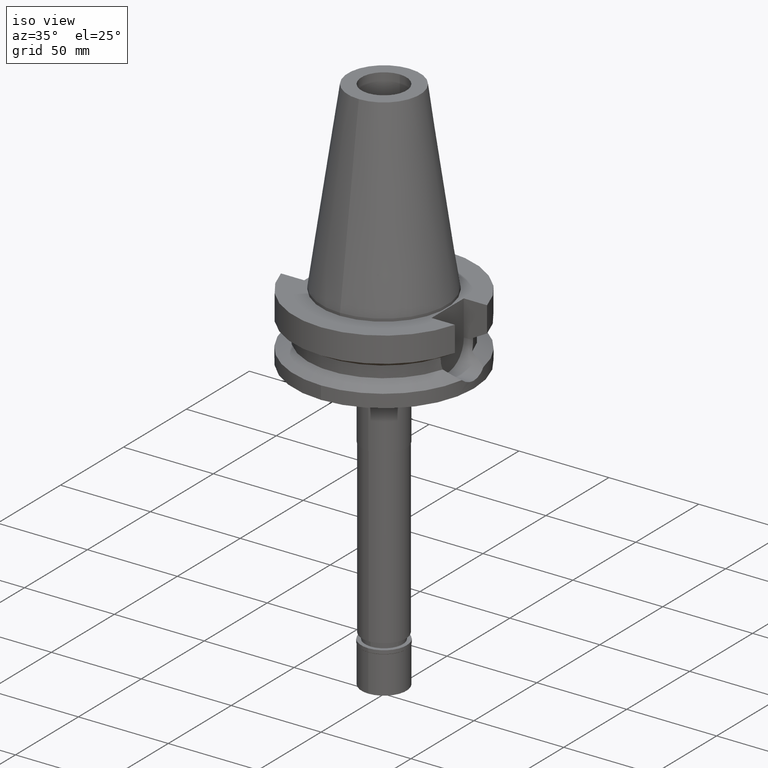
[diagram: clean part render]
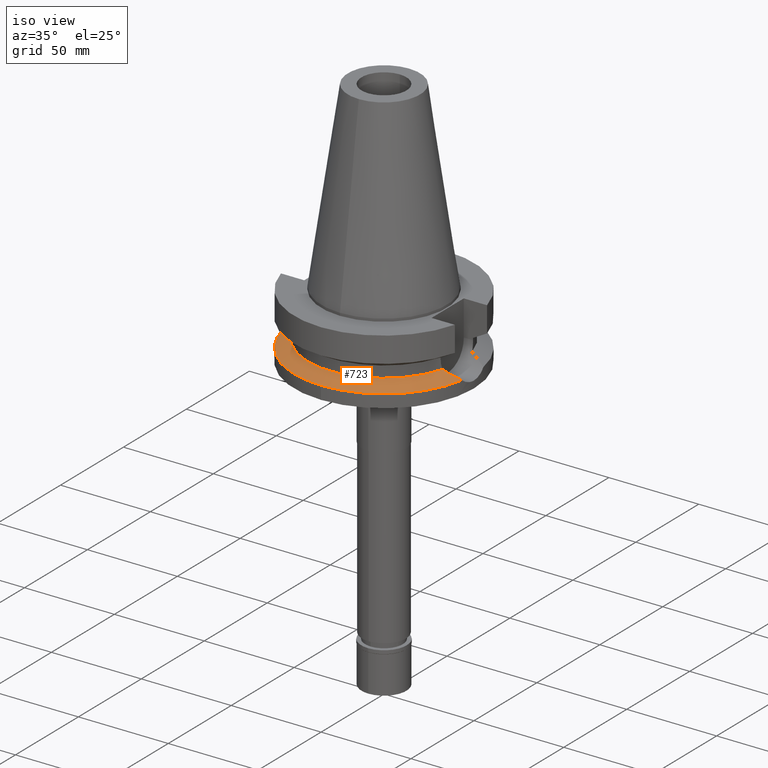
[diagram: same view with one face highlighted and labeled with its STEP entity id]
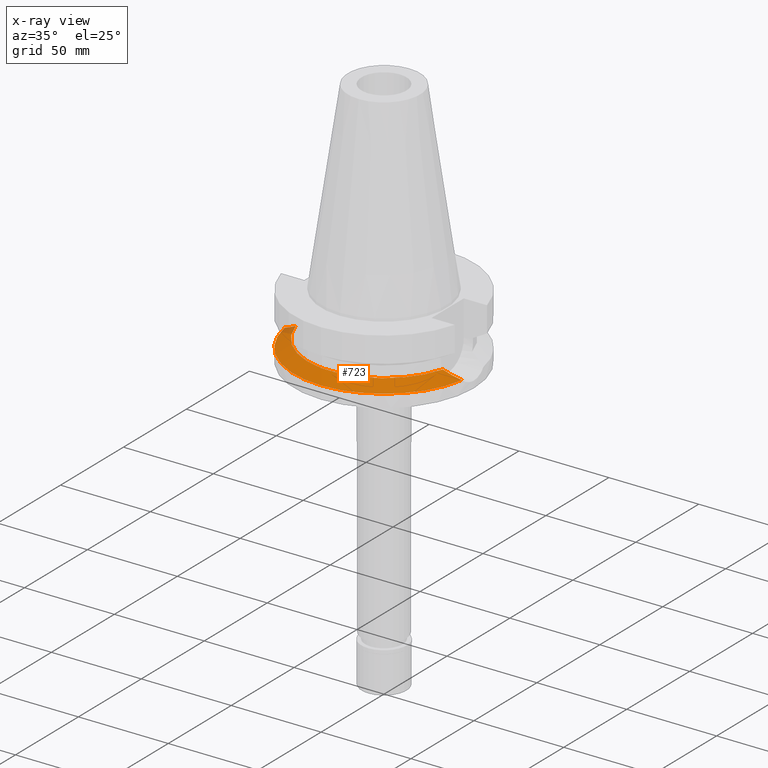
[diagram: x-ray of the same camera — body ghosted, the highlighted face saturated]
A machine part, iso view. The second image highlights one B-rep face of the part: STEP entity #723.
The next image is the same camera in x-ray: the body ghosted, the highlighted face saturated — about 2% of this face is hidden behind the body in this view.
In plain terms, the highlighted conical surface has half-angle 60 deg.
Its self-contained STEP definition (entity closure, byte-faithful):
#8 = VERTEX_POINT ( 'NONE', #1497 ) ;
#43 = ORIENTED_EDGE ( 'NONE', *, *, #246, .F. ) ;
#67 = AXIS2_PLACEMENT_3D ( 'NONE', #2087, #365, #2830 ) ;
#151 = CARTESIAN_POINT ( 'NONE',  ( -45.43153673700287953, -10.34609396948753179, -28.77110352131270687 ) ) ;
#162 = DIRECTION ( 'NONE',  ( 0.0000000000000000000, 0.0000000000000000000, 1.000000000000000000 ) ) ;
#200 = CARTESIAN_POINT ( 'NONE',  ( -45.98889564606068348, -10.12985182365856751, -29.05774813466844364 ) ) ;
#242 = EDGE_CURVE ( 'NONE', #2623, #2076, #2894, .T. ) ;
#246 = EDGE_CURVE ( 'NONE', #329, #2623, #3107, .T. ) ;
#329 = VERTEX_POINT ( 'NONE', #436 ) ;
#365 = DIRECTION ( 'NONE',  ( 0.0000000000000000000, 0.0000000000000000000, -1.000000000000000000 ) ) ;
#387 = EDGE_CURVE ( 'NONE', #2076, #8, #2824, .T. ) ;
#436 = CARTESIAN_POINT ( 'NONE',  ( 49.26250064874000145, -8.556052234130000045, -30.73730776426999967 ) ) ;
#441 = CARTESIAN_POINT ( 'NONE',  ( 45.34961199713250579, -10.37693058794193668, -28.72912203531489439 ) ) ;
#455 = CARTESIAN_POINT ( 'NONE',  ( 45.47522466885785519, -10.32938143917868601, -28.79372822533596121 ) ) ;
#600 = DIRECTION ( 'NONE',  ( 0.0000000000000000000, 0.0000000000000000000, -1.000000000000000000 ) ) ;
#654 = ORIENTED_EDGE ( 'NONE', *, *, #242, .F. ) ;
#656 = CARTESIAN_POINT ( 'NONE',  ( -47.11329693392804785, -9.652475852286576341, -29.63548234299633677 ) ) ;
#693 = CARTESIAN_POINT ( 'NONE',  ( -42.54334651794913214, -11.33225947987075877, -27.28398053277577873 ) ) ;
#697 = CARTESIAN_POINT ( 'NONE',  ( 44.08864117212704059, -10.82336392978616857, -28.08017507441951111 ) ) ;
#723 = ADVANCED_FACE ( 'NONE', ( #830 ), #1493, .T. ) ;
#733 = ORIENTED_EDGE ( 'NONE', *, *, #387, .F. ) ;
#746 = CARTESIAN_POINT ( 'NONE',  ( 48.17329793562976903, -9.181108582848130695, -30.17948539114933837 ) ) ;
#824 = DIRECTION ( 'NONE',  ( 0.0000000000000000000, 0.0000000000000000000, -1.000000000000000000 ) ) ;
#830 = FACE_OUTER_BOUND ( 'NONE', #3016, .T. ) ;
#863 = EDGE_CURVE ( 'NONE', #2731, #329, #2817, .T. ) ;
#903 = DIRECTION ( 'NONE',  ( 0.0000000000000000000, -1.000000000000000000, 0.0000000000000000000 ) ) ;
#949 = CARTESIAN_POINT ( 'NONE',  ( 0.0000000000000000000, -50.00000000000000000, -30.73730776426999967 ) ) ;
#951 = CARTESIAN_POINT ( 'NONE',  ( -45.37383198676859308, -10.36787785463953959, -28.74142035702148945 ) ) ;
#993 = CIRCLE ( 'NONE', #2803, 42.50000000000000000 ) ;
#1085 = CARTESIAN_POINT ( 'NONE',  ( 0.0000000000000000000, 0.0000000000000000000, -30.73730776426999967 ) ) ;
#1170 = CARTESIAN_POINT ( 'NONE',  ( -45.39692684362336195, -10.35916877310016027, -28.75330037392657445 ) ) ;
#1382 = CARTESIAN_POINT ( 'NONE',  ( -46.77625750527455750, -9.802034683528001224, -29.46240053052295593 ) ) ;
#1427 = CARTESIAN_POINT ( 'NONE',  ( -49.26250064874000145, -8.556052234130000045, -30.73730776426999967 ) ) ;
#1493 = CONICAL_SURFACE ( 'NONE', #2637, 46.25000000000000000, 1.047197551196400456 ) ;
#1497 = CARTESIAN_POINT ( 'NONE',  ( -40.85052569294000335, -11.72538061688000077, -26.40718074535000426 ) ) ;
#1588 = DIRECTION ( 'NONE',  ( 0.0000000000000000000, -1.000000000000000000, 0.0000000000000000000 ) ) ;
#1633 = CARTESIAN_POINT ( 'NONE',  ( -48.09124591161025819, -9.195375972483855520, -30.13734462529286873 ) ) ;
#1646 = CARTESIAN_POINT ( 'NONE',  ( -40.85052569294000335, -11.72538061688000077, -26.40718074535000426 ) ) ;
#1700 = CARTESIAN_POINT ( 'NONE',  ( -48.69898615236066064, -8.879434015426456384, -30.44871043534659449 ) ) ;
#1706 = CARTESIAN_POINT ( 'NONE',  ( 41.72695976776593341, -11.52184770015332482, -26.86113145244769740 ) ) ;
#1723 = CARTESIAN_POINT ( 'NONE',  ( 46.91827285611654474, -9.778896238519932282, -29.53590992279274374 ) ) ;
#1735 = CARTESIAN_POINT ( 'NONE',  ( 49.26250064874000145, -8.556052234130000045, -30.73730776426999967 ) ) ;
#1818 = CARTESIAN_POINT ( 'NONE',  ( 0.0000000000000000000, 0.0000000000000000000, -28.57224425480999841 ) ) ;
#1948 = CARTESIAN_POINT ( 'NONE',  ( 0.0000000000000000000, 0.0000000000000000000, -26.40718074535000426 ) ) ;
#1982 = CARTESIAN_POINT ( 'NONE',  ( 42.55241844828393027, -11.29883974246741829, -27.28792173438198532 ) ) ;
#2070 = DIRECTION ( 'NONE',  ( 0.9852500129747439050, -0.1711210446826074982, 0.0000000000000000000 ) ) ;
#2076 = VERTEX_POINT ( 'NONE', #2137 ) ;
#2087 = CARTESIAN_POINT ( 'NONE',  ( 0.0000000000000000000, 0.0000000000000000000, -30.73730776426999967 ) ) ;
#2110 = AXIS2_PLACEMENT_3D ( 'NONE', #1085, #824, #2070 ) ;
#2137 = CARTESIAN_POINT ( 'NONE',  ( -49.26250064874000145, -8.556052234130000045, -30.73730776426999967 ) ) ;
#2147 = CARTESIAN_POINT ( 'NONE',  ( -46.25411370815518097, -10.02140734988904036, -29.19408113813012307 ) ) ;
#2188 = CARTESIAN_POINT ( 'NONE',  ( 43.71414337759900093, -10.94469431065044773, -27.88721063439874825 ) ) ;
#2403 = CARTESIAN_POINT ( 'NONE',  ( -45.51206641157007482, -10.31550816418443084, -28.81252601822142623 ) ) ;
#2436 = CARTESIAN_POINT ( 'NONE',  ( 45.41310994470852336, -10.35294500846405263, -28.76178110869155446 ) ) ;
#2548 = EDGE_CURVE ( 'NONE', #8, #2731, #993, .T. ) ;
#2619 = CARTESIAN_POINT ( 'NONE',  ( -44.04340619963954850, -10.86779429620430903, -28.05703177086082789 ) ) ;
#2623 = VERTEX_POINT ( 'NONE', #949 ) ;
#2637 = AXIS2_PLACEMENT_3D ( 'NONE', #1818, #600, #1588 ) ;
#2673 = CARTESIAN_POINT ( 'NONE',  ( 44.63127209105361004, -10.63754947704348552, -28.35954571752805364 ) ) ;
#2681 = CARTESIAN_POINT ( 'NONE',  ( -45.36091800784226535, -10.37273809374846145, -28.73477730515979545 ) ) ;
#2731 = VERTEX_POINT ( 'NONE', #2762 ) ;
#2762 = CARTESIAN_POINT ( 'NONE',  ( 40.85052569294000335, -11.72538061688000077, -26.40718074535000426 ) ) ;
#2767 = ORIENTED_EDGE ( 'NONE', *, *, #863, .F. ) ;
#2803 = AXIS2_PLACEMENT_3D ( 'NONE', #1948, #162, #903 ) ;
#2817 = B_SPLINE_CURVE_WITH_KNOTS ( 'NONE', 3,
 ( #2928, #1706, #1982, #2188, #697, #2673, #2976, #2956, #441, #2436, #3185, #455, #1723, #746, #1735 ),
 .UNSPECIFIED., .F., .F.,
 ( 4, 2, 2, 1, 1, 1, 2, 2, 4 ),
 ( 0.0000000000000000000, 0.2499999999999806821, 0.3749999999999710232, 0.4374999999999673039, 0.4687499999999654166, 0.4843749999999652500, 0.4921874999999653610, 0.4999999999999654721, 1.000000000000000000 ),
 .UNSPECIFIED. ) ;
#2824 = B_SPLINE_CURVE_WITH_KNOTS ( 'NONE', 3,
 ( #1427, #1700, #1633, #656, #1382, #2147, #200, #2884, #2403, #151, #1170, #951, #2681, #2619, #693, #1646 ),
 .UNSPECIFIED., .F., .F.,
 ( 4, 2, 2, 1, 1, 1, 1, 2, 2, 4 ),
 ( 0.0000000000000000000, 0.2500000000000018319, 0.3750000000000027756, 0.4375000000000038858, 0.4687500000000044964, 0.4843750000000040523, 0.4921875000000038303, 0.4960937500000034972, 0.5000000000000032196, 1.000000000000000000 ),
 .UNSPECIFIED. ) ;
#2830 = DIRECTION ( 'NONE',  ( 0.0000000000000000000, -1.000000000000000000, 0.0000000000000000000 ) ) ;
#2884 = CARTESIAN_POINT ( 'NONE',  ( -45.67221878743126240, -10.25402753974432279, -28.89489802541604391 ) ) ;
#2894 = CIRCLE ( 'NONE', #67, 50.00000000000000000 ) ;
#2928 = CARTESIAN_POINT ( 'NONE',  ( 40.85052569294000335, -11.72538061688000077, -26.40718074535000426 ) ) ;
#2940 = ORIENTED_EDGE ( 'NONE', *, *, #2548, .F. ) ;
#2956 = CARTESIAN_POINT ( 'NONE',  ( 45.20040472562663325, -10.43273760203010347, -28.65237623215547913 ) ) ;
#2976 = CARTESIAN_POINT ( 'NONE',  ( 44.89780860730053291, -10.54368650612202352, -28.49671337046649455 ) ) ;
#3016 = EDGE_LOOP ( 'NONE', ( #654, #43, #2767, #2940, #733 ) ) ;
#3107 = CIRCLE ( 'NONE', #2110, 50.00000000000000000 ) ;
#3185 = CARTESIAN_POINT ( 'NONE',  ( 45.45534234844217281, -10.33693977541719811, -28.78350234651907869 ) ) ;